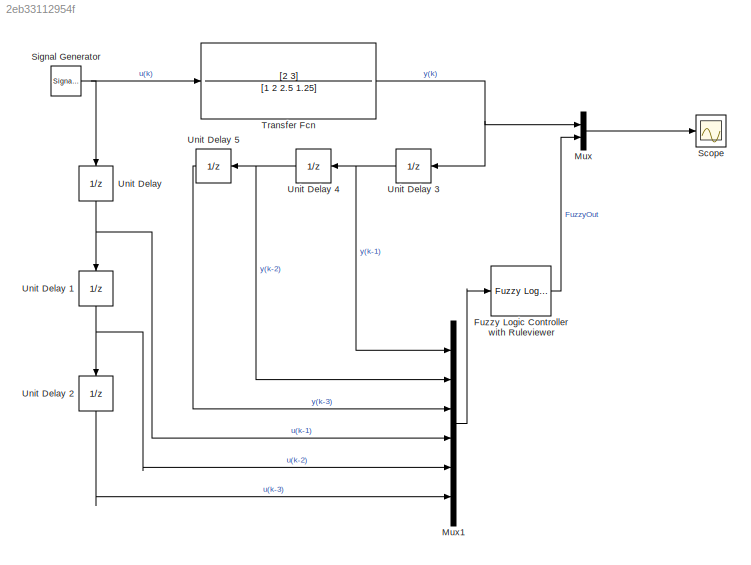
MODEL slx_2eb33112954f
KIND model
CONFIG AbsTol = auto
CONFIG EnableMultiTasking = off
CONFIG FixedStep = 0.1227
CONFIG MaxStep = auto
CONFIG MinStep = auto
CONFIG RelTol = 1e-3
CONFIG SampleTimeConstraint = Unconstrained
CONFIG SolverName = ode4
CONFIG StartTime = 0.0
CONFIG StopTime = 250.0
BLOCK [Reference] Fuzzy Logic Controller with Ruleviewer   REF=fuzblock/Fuzzy Logic   (lib defined in mdl_858b3b3e7478)
Controller 
with Ruleviewer
  Ports = [1, 1]
  SourceBlock = fuzblock/Fuzzy Logic \nController \nwith Ruleviewer
  SourceProductBaseCode = FL
  SourceType = Fuzzy Inference System
BLOCK [Mux] Mux
  DisplayOption = bar
  Inputs = 2
  Ports = [2, 1]
BLOCK [Mux] Mux1
  DisplayOption = bar
  Inputs = 6
  Ports = [6, 1]
BLOCK [Scope] Scope 
  Floating = off
  NumInputPorts = 1
  Ports = [1]
  ScopeSpecificationString = Simulink.scopes.TimeScopeBlockCfg('CurrentConfiguration', extmgr.ConfigurationSet(extmgr.Configuration('Core','General UI',true),extmgr.Configuration('Core','Source UI',true),extmgr.Configuration('Sources','WiredSimulink',true),extmgr.Configuration('Visuals','Time Domain',true,'SerializedDisplays',{struct('MinYLimReal','-1.1299','MaxYLimReal','1.3351','YLabelReal','','MinYLimMag','0.00000','MaxYLi...<+1354ch>
BLOCK [SignalGenerator] Signal Generator 
  Frequency = 0.05
  Ports = [0, 1]
  Units = rad/sec
BLOCK [TransferFcn] Transfer Fcn 
  Denominator = [1 2 2.5 1.25]
  Numerator = [2 3]
BLOCK [UnitDelay] Unit Delay 
  HasFrameUpgradeWarning = on
  NameLocation = left
  SampleTime = 0.4908
BLOCK [UnitDelay] Unit Delay 1
  HasFrameUpgradeWarning = on
  NameLocation = left
  SampleTime = 0.4908
BLOCK [UnitDelay] Unit Delay 2
  HasFrameUpgradeWarning = on
  NameLocation = left
  SampleTime = 0.4908
BLOCK [UnitDelay] Unit Delay 3
  HasFrameUpgradeWarning = on
  SampleTime = 0.4908
BLOCK [UnitDelay] Unit Delay 4
  HasFrameUpgradeWarning = on
  SampleTime = 0.4908
BLOCK [UnitDelay] Unit Delay 5
  HasFrameUpgradeWarning = on
  SampleTime = 0.4908
LINE Fuzzy Logic Controller with Ruleviewer :1 -> Mux:2
LINE Mux1:1 -> Fuzzy Logic Controller with Ruleviewer :1
LINE Mux:1 -> Scope :1
NET Signal Generator :1 -> Transfer Fcn :1, Unit Delay :1
NET Transfer Fcn :1 -> Mux:1, Unit Delay 3:1
NET Unit Delay 1:1 -> Mux1:5, Unit Delay 2:1
LINE Unit Delay 2:1 -> Mux1:6
NET Unit Delay 3:1 -> Mux1:1, Unit Delay 4:1
NET Unit Delay 4:1 -> Mux1:2, Unit Delay 5:1
LINE Unit Delay 5:1 -> Mux1:3
NET Unit Delay :1 -> Mux1:4, Unit Delay 1:1
note: NET lines group one-source signal fan-out (src -> all destinations, sorted); 1:1 wires keep LINE
